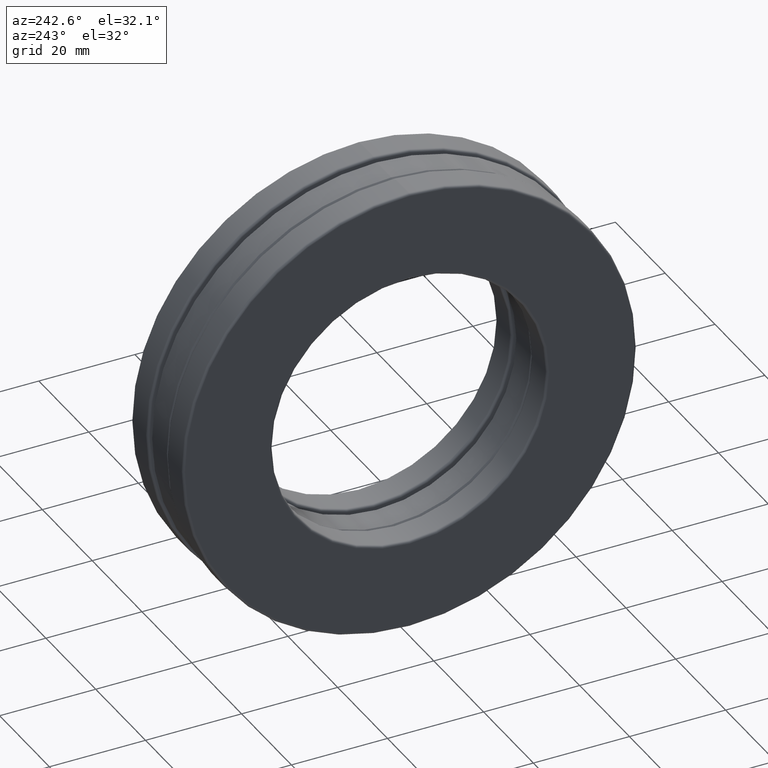
[diagram: clean part render]
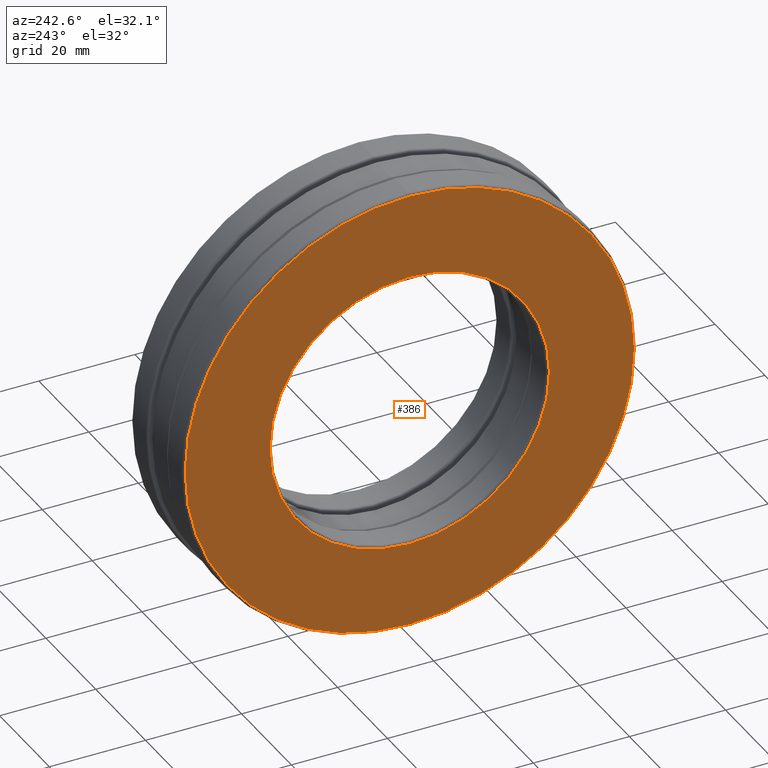
[diagram: same view with one face highlighted and labeled with its STEP entity id]
A machine part, auxiliary view. The second image highlights one B-rep face of the part: STEP entity #386.
In plain terms, the highlighted planar face has unit normal (1, 0, 0).
Its self-contained STEP definition (entity closure, byte-faithful):
#13 = FACE_OUTER_BOUND ( 'NONE', #1290, .T. ) ;
#162 = CARTESIAN_POINT ( 'NONE',  ( -0.4059999999999998600, 0.0000000000000000000, 0.0000000000000000000 ) ) ;
#216 = CIRCLE ( 'NONE', #617, 1.145000000000000000 ) ;
#230 = VERTEX_POINT ( 'NONE', #345 ) ;
#235 = EDGE_CURVE ( 'NONE', #230, #230, #391, .T. ) ;
#237 = CARTESIAN_POINT ( 'NONE',  ( -0.4059999999999998600, 0.0000000000000000000, 0.0000000000000000000 ) ) ;
#345 = CARTESIAN_POINT ( 'NONE',  ( -0.4059999999999998600, 0.0000000000000000000, 1.839375000000000600 ) ) ;
#369 = DIRECTION ( 'NONE',  ( 0.0000000000000000000, 0.0000000000000000000, 1.000000000000000000 ) ) ;
#386 = ADVANCED_FACE ( 'NONE', ( #599, #13 ), #839, .F. ) ;
#391 = CIRCLE ( 'NONE', #836, 1.839375000000000600 ) ;
#599 = FACE_BOUND ( 'NONE', #1036, .T. ) ;
#617 = AXIS2_PLACEMENT_3D ( 'NONE', #1135, #647, #1142 ) ;
#647 = DIRECTION ( 'NONE',  ( -1.000000000000000000, -0.0000000000000000000, -0.0000000000000000000 ) ) ;
#835 = ORIENTED_EDGE ( 'NONE', *, *, #235, .T. ) ;
#836 = AXIS2_PLACEMENT_3D ( 'NONE', #237, #1032, #369 ) ;
#839 = PLANE ( 'NONE',  #1046 ) ;
#940 = VERTEX_POINT ( 'NONE', #1021 ) ;
#1021 = CARTESIAN_POINT ( 'NONE',  ( -0.4059999999999998600, 0.0000000000000000000, 1.145000000000000000 ) ) ;
#1032 = DIRECTION ( 'NONE',  ( -1.000000000000000000, -0.0000000000000000000, -0.0000000000000000000 ) ) ;
#1036 = EDGE_LOOP ( 'NONE', ( #1040 ) ) ;
#1040 = ORIENTED_EDGE ( 'NONE', *, *, #1089, .F. ) ;
#1046 = AXIS2_PLACEMENT_3D ( 'NONE', #162, #1171, #1282 ) ;
#1089 = EDGE_CURVE ( 'NONE', #940, #940, #216, .T. ) ;
#1135 = CARTESIAN_POINT ( 'NONE',  ( -0.4059999999999998600, 0.0000000000000000000, 0.0000000000000000000 ) ) ;
#1142 = DIRECTION ( 'NONE',  ( 0.0000000000000000000, 0.0000000000000000000, 1.000000000000000000 ) ) ;
#1171 = DIRECTION ( 'NONE',  ( 1.000000000000000000, 0.0000000000000000000, 0.0000000000000000000 ) ) ;
#1282 = DIRECTION ( 'NONE',  ( 0.0000000000000000000, 0.0000000000000000000, -1.000000000000000000 ) ) ;
#1290 = EDGE_LOOP ( 'NONE', ( #835 ) ) ;